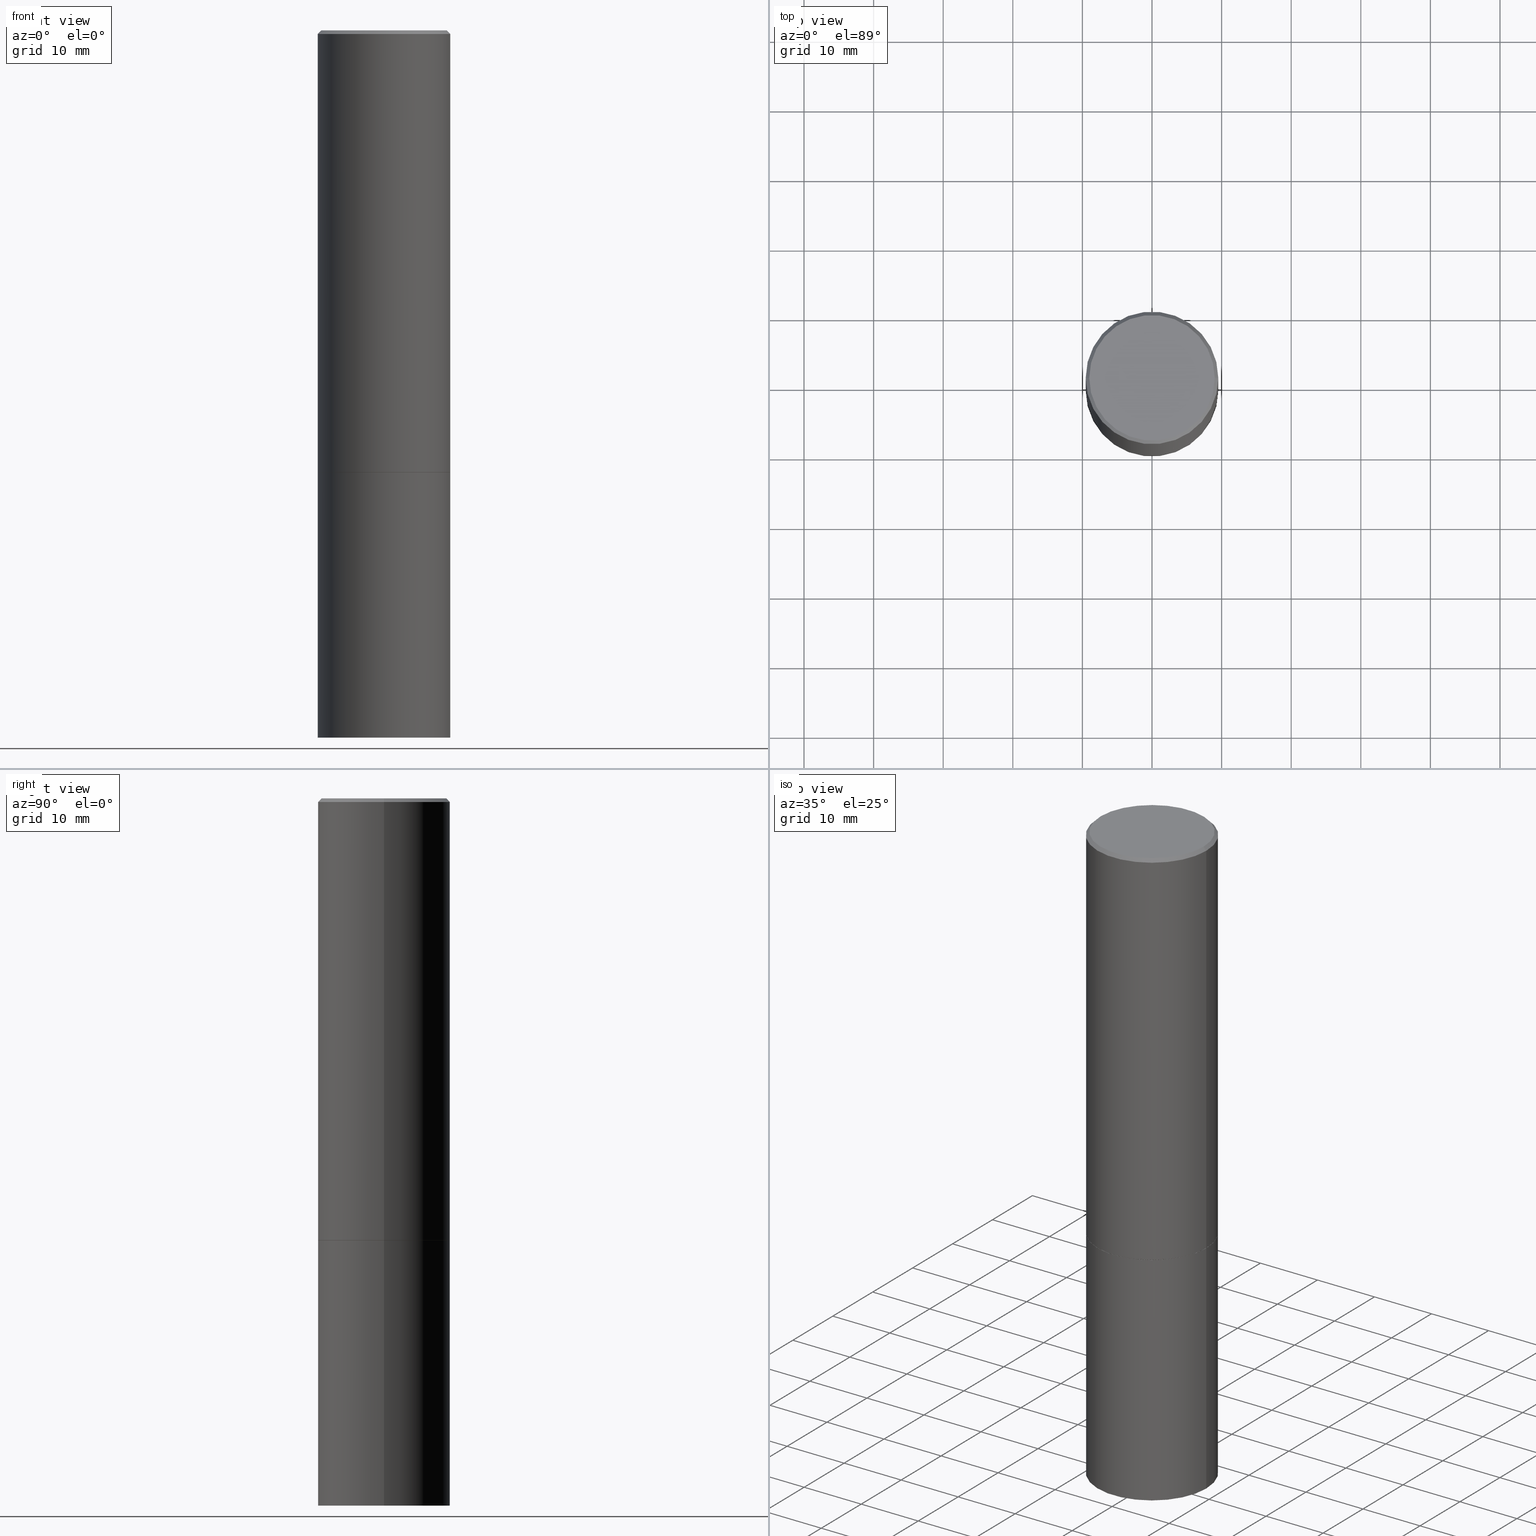
[diagram: canonical four-view strip — front | top / right | iso, engineering-drawing reading convention]
A machine part, canonical four-view strip (front | top / right | iso — engineering-drawing reading convention). The complete STEP part file that produces these views, byte-faithful:
ISO-10303-21;
HEADER;
FILE_DESCRIPTION (( 'STEP AP203' ),
    '1' );
FILE_NAME ('37206.STEP',
    '2024-02-27T20:58:34',
    ( '' ),
    ( '' ),
    'SwSTEP 2.0',
    'SolidWorks 2023',
    '' );
FILE_SCHEMA (( 'CONFIG_CONTROL_DESIGN' ));
ENDSEC;

DATA;
#1 =( GEOMETRIC_REPRESENTATION_CONTEXT ( 3 ) GLOBAL_UNCERTAINTY_ASSIGNED_CONTEXT ( ( #226 ) ) GLOBAL_UNIT_ASSIGNED_CONTEXT ( ( #276, #151, #274 ) ) REPRESENTATION_CONTEXT ( 'NONE', 'WORKASPACE' ) );
#2 = CARTESIAN_POINT ( 'NONE',  ( 9.781875224740546387E-29, -1.396592535537258233E-14, -4.000000000000000000 ) ) ;
#3 = CARTESIAN_POINT ( 'NONE',  ( 4.890937612370296805E-31, -6.982962677686323656E-17, -0.02000000000000009409 ) ) ;
#4 = COORDINATED_UNIVERSAL_TIME_OFFSET ( 5, 0, .BEHIND. ) ;
#5 = DIRECTION ( 'NONE',  ( -2.445468806185136877E-29, 3.491481338843145188E-15, 1.000000000000000000 ) ) ;
#6 = VECTOR ( 'NONE', #249, 39.37007874015748143 ) ;
#7 = DIRECTION ( 'NONE',  ( -2.445468806185136877E-29, 3.491481338843145188E-15, 1.000000000000000000 ) ) ;
#8 = PERSON_AND_ORGANIZATION ( #272, #94 ) ;
#9 = AXIS2_PLACEMENT_3D ( 'NONE', #3, #65, #225 ) ;
#10 = LOCAL_TIME ( 15, 58, 34.00000000000000000, #50 ) ;
#11 = APPROVAL_STATUS ( 'not_yet_approved' ) ;
#12 = ORIENTED_EDGE ( 'NONE', *, *, #91, .T. ) ;
#13 = CARTESIAN_POINT ( 'NONE',  ( -0.3739999999999999991, -6.071273515365089465E-15, -2.500000000000000000 ) ) ;
#14 = VERTEX_POINT ( 'NONE', #286 ) ;
#15 = CIRCLE ( 'NONE', #28, 0.3750000000000000555 ) ;
#16 = ORIENTED_EDGE ( 'NONE', *, *, #278, .F. ) ;
#17 = PRODUCT ( '37206', '37206', '', ( #31 ) ) ;
#18 = CARTESIAN_POINT ( 'NONE',  ( 0.3739999999999999991, -1.134033138856252894E-14, -2.500000000000000000 ) ) ;
#19 = ORIENTED_EDGE ( 'NONE', *, *, #231, .F. ) ;
#20 = PLANE ( 'NONE',  #352 ) ;
#21 = ORIENTED_EDGE ( 'NONE', *, *, #91, .F. ) ;
#22 = AXIS2_PLACEMENT_3D ( 'NONE', #219, #52, #157 ) ;
#23 = CARTESIAN_POINT ( 'NONE',  ( 2.478951750578621842E-15, 0.3549999999999996492, -1.237341619044265047E-15 ) ) ;
#24 = EDGE_LOOP ( 'NONE', ( #186, #241 ) ) ;
#25 = CARTESIAN_POINT ( 'NONE',  ( 0.000000000000000000, 0.000000000000000000, 0.000000000000000000 ) ) ;
#26 =( LENGTH_UNIT ( ) NAMED_UNIT ( * ) SI_UNIT ( $, .METRE. ) );
#27 = DIRECTION ( 'NONE',  ( -1.000000000000000000, 6.982962677686265922E-15, -4.876176775795935793E-29 ) ) ;
#28 = AXIS2_PLACEMENT_3D ( 'NONE', #305, #360, #330 ) ;
#29 = ADVANCED_FACE ( 'NONE', ( #140 ), #106, .T. ) ;
#30 = FACE_OUTER_BOUND ( 'NONE', #156, .T. ) ;
#31 = MECHANICAL_CONTEXT ( 'NONE', #353, 'mechanical' ) ;
#32 = CARTESIAN_POINT ( 'NONE',  ( -0.3749999999999998335, 2.664535259100374514E-15, -1.844600658845588757E-29 ) ) ;
#33 = CARTESIAN_POINT ( 'NONE',  ( 0.3750000000000000555, -2.618611004132350016E-15, 1.828566290923476203E-29 ) ) ;
#34 = AXIS2_PLACEMENT_3D ( 'NONE', #338, #109, #61 ) ;
#35 = APPROVAL_PERSON_ORGANIZATION ( #59, #254, #252 ) ;
#36 = CARTESIAN_POINT ( 'NONE',  ( 0.000000000000000000, 0.000000000000000000, 0.000000000000000000 ) ) ;
#37 = EDGE_CURVE ( 'NONE', #328, #244, #344, .T. ) ;
#38 = CC_DESIGN_PERSON_AND_ORGANIZATION_ASSIGNMENT ( #342, #198, ( #147 ) ) ;
#39 = ADVANCED_FACE ( 'NONE', ( #366 ), #133, .T. ) ;
#40 = AXIS2_PLACEMENT_3D ( 'NONE', #76, #240, #132 ) ;
#41 = EDGE_LOOP ( 'NONE', ( #95, #208 ) ) ;
#42 = PERSON_AND_ORGANIZATION_ROLE ( 'classification_officer' ) ;
#43 = ORIENTED_EDGE ( 'NONE', *, *, #48, .T. ) ;
#44 = DIRECTION ( 'NONE',  ( -0.7071067811865469066, 2.468850131082249961E-15, -0.7071067811865482389 ) ) ;
#45 = ORIENTED_EDGE ( 'NONE', *, *, #245, .F. ) ;
#46 = CIRCLE ( 'NONE', #235, 0.3549999999999996492 ) ;
#47 = DIRECTION ( 'NONE',  ( -2.445468806185136597E-29, 3.491481338843145583E-15, 1.000000000000000000 ) ) ;
#48 = EDGE_CURVE ( 'NONE', #210, #297, #161, .T. ) ;
#49 = VERTEX_POINT ( 'NONE', #190 ) ;
#50 = COORDINATED_UNIVERSAL_TIME_OFFSET ( 5, 0, .BEHIND. ) ;
#51 = ORIENTED_EDGE ( 'NONE', *, *, #229, .T. ) ;
#52 = DIRECTION ( 'NONE',  ( -2.445468806185136597E-29, 3.491481338843145583E-15, 1.000000000000000000 ) ) ;
#53 = CYLINDRICAL_SURFACE ( 'NONE', #89, 0.3750000000000000555 ) ;
#54 = ADVANCED_FACE ( 'NONE', ( #30 ), #53, .T. ) ;
#55 = DATE_AND_TIME ( #298, #10 ) ;
#56 = CARTESIAN_POINT ( 'NONE',  ( 0.3749999999999996669, -2.642516375941185662E-15, -0.02000000000000009409 ) ) ;
#57 = CC_DESIGN_DATE_AND_TIME_ASSIGNMENT ( #292, #143, ( #147 ) ) ;
#58 = FACE_OUTER_BOUND ( 'NONE', #24, .T. ) ;
#59 = PERSON_AND_ORGANIZATION ( #272, #94 ) ;
#60 = EDGE_CURVE ( 'NONE', #325, #239, #308, .T. ) ;
#61 = DIRECTION ( 'NONE',  ( 1.000000000000000000, -6.982962677686268288E-15, 0.000000000000000000 ) ) ;
#62 = VECTOR ( 'NONE', #5, 39.37007874015748143 ) ;
#63 = CONICAL_SURFACE ( 'NONE', #114, 0.3739999999999999991, 0.7853981633978239785 ) ;
#64 = SECURITY_CLASSIFICATION ( '', '', #321 ) ;
#65 = DIRECTION ( 'NONE',  ( -2.445468806185136597E-29, 3.491481338843145583E-15, 1.000000000000000000 ) ) ;
#66 = CARTESIAN_POINT ( 'NONE',  ( -0.3750000000000000555, 2.664535259100376091E-15, -1.844600658845589598E-29 ) ) ;
#67 = COORDINATED_UNIVERSAL_TIME_OFFSET ( 5, 0, .BEHIND. ) ;
#68 = MANIFOLD_SOLID_BREP ( 'Body-Move/Copy2[2]', #130 ) ;
#69 = VECTOR ( 'NONE', #44, 39.37007874015748143 ) ;
#70 = CC_DESIGN_APPROVAL ( #119, ( #64 ) ) ;
#71 = EDGE_LOOP ( 'NONE', ( #356, #220, #323, #153 ) ) ;
#72 = ORIENTED_EDGE ( 'NONE', *, *, #288, .F. ) ;
#73 = CARTESIAN_POINT ( 'NONE',  ( 2.618611004132448230E-15, 0.3749999999999861222, -4.000000000000000888 ) ) ;
#74 = DIRECTION ( 'NONE',  ( 2.438088387897960049E-29, -3.491481338843145188E-15, -1.000000000000000000 ) ) ;
#75 = EDGE_LOOP ( 'NONE', ( #146, #150, #126, #101 ) ) ;
#76 = CARTESIAN_POINT ( 'NONE',  ( 9.781875224740546387E-29, -1.396592535537258233E-14, -4.000000000000000000 ) ) ;
#77 = EDGE_LOOP ( 'NONE', ( #21, #193 ) ) ;
#78 = DIRECTION ( 'NONE',  ( 1.000000000000000000, -6.982962677686268288E-15, 0.000000000000000000 ) ) ;
#79 = DIRECTION ( 'NONE',  ( -2.445468806185136597E-29, 3.491481338843145583E-15, 1.000000000000000000 ) ) ;
#80 = AXIS2_PLACEMENT_3D ( 'NONE', #282, #111, #27 ) ;
#81 = CARTESIAN_POINT ( 'NONE',  ( -1.043851414335219820E-46, 1.490343170380447200E-32, 4.268512490100411279E-18 ) ) ;
#82 = APPLICATION_PROTOCOL_DEFINITION ( 'international standard', 'config_control_design', 1994, #301 ) ;
#83 = DIRECTION ( 'NONE',  ( -2.445468806185136597E-29, 3.491481338843145583E-15, 1.000000000000000000 ) ) ;
#84 = CARTESIAN_POINT ( 'NONE',  ( 6.113672015462842613E-29, -8.728703347107864943E-15, -2.500000000000000000 ) ) ;
#85 = CIRCLE ( 'NONE', #131, 0.3749999999999996669 ) ;
#86 = CARTESIAN_POINT ( 'NONE',  ( 0.3749999999999996669, -2.642516375941185662E-15, -0.02000000000000009409 ) ) ;
#87 = FACE_OUTER_BOUND ( 'NONE', #77, .T. ) ;
#88 = CC_DESIGN_PERSON_AND_ORGANIZATION_ASSIGNMENT ( #354, #93, ( #317 ) ) ;
#89 = AXIS2_PLACEMENT_3D ( 'NONE', #25, #341, #223 ) ;
#90 = CONICAL_SURFACE ( 'NONE', #183, 0.3749999999999996669, 0.7853981633974473908 ) ;
#91 = EDGE_CURVE ( 'NONE', #244, #328, #256, .T. ) ;
#92 = CALENDAR_DATE ( 2024, 27, 2 ) ;
#93 = PERSON_AND_ORGANIZATION_ROLE ( 'creator' ) ;
#94 = ORGANIZATION ( 'UNSPECIFIED', 'UNSPECIFIED', '' ) ;
#95 = ORIENTED_EDGE ( 'NONE', *, *, #152, .T. ) ;
#96 = APPROVAL_ROLE ( '' ) ;
#97 = ORIENTED_EDGE ( 'NONE', *, *, #238, .F. ) ;
#98 = ORIENTED_EDGE ( 'NONE', *, *, #329, .T. ) ;
#99 = CC_DESIGN_DATE_AND_TIME_ASSIGNMENT ( #180, #259, ( #64 ) ) ;
#100 = DIRECTION ( 'NONE',  ( 2.438088387897960049E-29, -3.491481338843145188E-15, -1.000000000000000000 ) ) ;
#101 = ORIENTED_EDGE ( 'NONE', *, *, #174, .F. ) ;
#102 = EDGE_CURVE ( 'NONE', #325, #267, #46, .T. ) ;
#103 = VERTEX_POINT ( 'NONE', #281 ) ;
#104 = PLANE ( 'NONE',  #243 ) ;
#105 = SHAPE_DEFINITION_REPRESENTATION ( #273, #320 ) ;
#106 = CYLINDRICAL_SURFACE ( 'NONE', #250, 0.3749999999999998335 ) ;
#107 = DIRECTION ( 'NONE',  ( 0.000000000000000000, 0.000000000000000000, 1.000000000000000000 ) ) ;
#108 = DIRECTION ( 'NONE',  ( 1.000000000000000000, -6.982962677686266711E-15, 0.000000000000000000 ) ) ;
#109 = DIRECTION ( 'NONE',  ( -2.445468806185136597E-29, 3.491481338843145583E-15, 1.000000000000000000 ) ) ;
#110 = CALENDAR_DATE ( 2024, 27, 2 ) ;
#111 = DIRECTION ( 'NONE',  ( 2.438088387897960049E-29, -3.491481338843145188E-15, -1.000000000000000000 ) ) ;
#112 = PERSON_AND_ORGANIZATION_ROLE ( 'design_owner' ) ;
#113 = ADVANCED_FACE ( 'NONE', ( #58 ), #164, .F. ) ;
#114 = AXIS2_PLACEMENT_3D ( 'NONE', #182, #299, #279 ) ;
#115 = ADVANCED_FACE ( 'NONE', ( #194 ), #90, .T. ) ;
#116 = DIRECTION ( 'NONE',  ( -2.445468806185136877E-29, 3.491481338843145188E-15, 1.000000000000000000 ) ) ;
#117 = CC_DESIGN_APPROVAL ( #138, ( #317 ) ) ;
#118 = APPROVAL_PERSON_ORGANIZATION ( #8, #119, #173 ) ;
#119 = APPROVAL ( #319, 'UNSPECIFIED' ) ;
#120 = COORDINATED_UNIVERSAL_TIME_OFFSET ( 5, 0, .BEHIND. ) ;
#121 = ORIENTED_EDGE ( 'NONE', *, *, #162, .T. ) ;
#122 = DIRECTION ( 'NONE',  ( 1.000000000000000000, -6.982962677686264344E-15, 0.000000000000000000 ) ) ;
#123 = CIRCLE ( 'NONE', #22, 0.3750000000000000555 ) ;
#124 = ORIENTED_EDGE ( 'NONE', *, *, #195, .F. ) ;
#125 = CARTESIAN_POINT ( 'NONE',  ( -0.3749999999999999445, -1.732985487172566723E-15, -2.499000000000000998 ) ) ;
#126 = ORIENTED_EDGE ( 'NONE', *, *, #245, .T. ) ;
#127 = DIRECTION ( 'NONE',  ( 1.000000000000000000, -6.982962677686265922E-15, 4.876176775795935793E-29 ) ) ;
#128 = CARTESIAN_POINT ( 'NONE',  ( 0.3549999999999996492, -2.538996582575038287E-15, 4.268512490117958041E-18 ) ) ;
#129 = ORIENTED_EDGE ( 'NONE', *, *, #102, .F. ) ;
#130 = CLOSED_SHELL ( 'NONE', ( #355, #29, #339, #115, #39, #351, #260, #262 ) ) ;
#131 = AXIS2_PLACEMENT_3D ( 'NONE', #311, #283, #253 ) ;
#132 = DIRECTION ( 'NONE',  ( 1.000000000000000000, -6.982962677686266711E-15, 0.000000000000000000 ) ) ;
#133 = CYLINDRICAL_SURFACE ( 'NONE', #159, 0.3749999999999998335 ) ;
#134 = ORIENTED_EDGE ( 'NONE', *, *, #329, .F. ) ;
#135 = EDGE_CURVE ( 'NONE', #49, #304, #221, .T. ) ;
#136 = DIRECTION ( 'NONE',  ( -1.000000000000000000, 6.982962677686266711E-15, 0.000000000000000000 ) ) ;
#137 = CIRCLE ( 'NONE', #357, 0.3549999999999996492 ) ;
#138 = APPROVAL ( #11, 'UNSPECIFIED' ) ;
#139 = DIRECTION ( 'NONE',  ( 2.445468806185136597E-29, -3.491481338843145583E-15, -1.000000000000000000 ) ) ;
#140 = FACE_OUTER_BOUND ( 'NONE', #236, .T. ) ;
#141 = CYLINDRICAL_SURFACE ( 'NONE', #192, 0.3750000000000000555 ) ;
#142 = AXIS2_PLACEMENT_3D ( 'NONE', #345, #188, #247 ) ;
#143 = DATE_TIME_ROLE ( 'creation_date' ) ;
#144 = ORIENTED_EDGE ( 'NONE', *, *, #60, .T. ) ;
#145 = COORDINATED_UNIVERSAL_TIME_OFFSET ( 5, 0, .BEHIND. ) ;
#146 = ORIENTED_EDGE ( 'NONE', *, *, #177, .F. ) ;
#147 = PRODUCT_DEFINITION ( 'UNKNOWN', '', #317, #312 ) ;
#148 = DIRECTION ( 'NONE',  ( -2.445468806185136597E-29, 3.491481338843145583E-15, 1.000000000000000000 ) ) ;
#149 = APPROVAL_PERSON_ORGANIZATION ( #266, #138, #96 ) ;
#150 = ORIENTED_EDGE ( 'NONE', *, *, #135, .T. ) ;
#151 =( NAMED_UNIT ( * ) PLANE_ANGLE_UNIT ( ) SI_UNIT ( $, .RADIAN. ) );
#152 = EDGE_CURVE ( 'NONE', #267, #325, #137, .T. ) ;
#153 = ORIENTED_EDGE ( 'NONE', *, *, #167, .F. ) ;
#154 = FACE_OUTER_BOUND ( 'NONE', #294, .T. ) ;
#155 = CC_DESIGN_PERSON_AND_ORGANIZATION_ASSIGNMENT ( #349, #206, ( #317 ) ) ;
#156 = EDGE_LOOP ( 'NONE', ( #280, #296, #19, #45 ) ) ;
#157 = DIRECTION ( 'NONE',  ( 1.000000000000000000, -6.982962677686264344E-15, 0.000000000000000000 ) ) ;
#158 = DIRECTION ( 'NONE',  ( -2.445468806185136597E-29, 3.491481338843145583E-15, 1.000000000000000000 ) ) ;
#159 = AXIS2_PLACEMENT_3D ( 'NONE', #168, #255, #224 ) ;
#160 = LINE ( 'NONE', #18, #346 ) ;
#161 = LINE ( 'NONE', #32, #62 ) ;
#162 = EDGE_CURVE ( 'NONE', #239, #297, #85, .T. ) ;
#163 = DIRECTION ( 'NONE',  ( -1.000000000000000000, 6.982962677686265922E-15, -4.876176775795935793E-29 ) ) ;
#164 = PLANE ( 'NONE',  #80 ) ;
#165 = CARTESIAN_POINT ( 'NONE',  ( 4.890937612370296805E-31, -6.982962677686323656E-17, -0.02000000000000009409 ) ) ;
#166 = VECTOR ( 'NONE', #7, 39.37007874015748143 ) ;
#167 = EDGE_CURVE ( 'NONE', #297, #239, #251, .T. ) ;
#168 = CARTESIAN_POINT ( 'NONE',  ( 0.000000000000000000, 0.000000000000000000, 0.000000000000000000 ) ) ;
#169 = LINE ( 'NONE', #33, #166 ) ;
#170 = CC_DESIGN_PERSON_AND_ORGANIZATION_ASSIGNMENT ( #316, #112, ( #17 ) ) ;
#171 = LINE ( 'NONE', #13, #290 ) ;
#172 = LOCAL_TIME ( 15, 58, 34.00000000000000000, #67 ) ;
#173 = APPROVAL_ROLE ( '' ) ;
#174 = EDGE_CURVE ( 'NONE', #14, #178, #207, .T. ) ;
#175 = DIRECTION ( 'NONE',  ( 1.000000000000000000, -6.982962677686265922E-15, 4.876176775795935793E-29 ) ) ;
#176 = AXIS2_PLACEMENT_3D ( 'NONE', #215, #364, #242 ) ;
#177 = EDGE_CURVE ( 'NONE', #49, #14, #365, .T. ) ;
#178 = VERTEX_POINT ( 'NONE', #230 ) ;
#179 = CC_DESIGN_PERSON_AND_ORGANIZATION_ASSIGNMENT ( #295, #42, ( #64 ) ) ;
#180 = DATE_AND_TIME ( #234, #264 ) ;
#181 = ORIENTED_EDGE ( 'NONE', *, *, #229, .F. ) ;
#182 = CARTESIAN_POINT ( 'NONE',  ( 6.113672015462842613E-29, -8.728703347107864943E-15, -2.500000000000000000 ) ) ;
#183 = AXIS2_PLACEMENT_3D ( 'NONE', #165, #139, #136 ) ;
#184 = ORIENTED_EDGE ( 'NONE', *, *, #37, .T. ) ;
#185 = DIRECTION ( 'NONE',  ( -2.438088387897960049E-29, 3.491481338843145188E-15, 1.000000000000000000 ) ) ;
#186 = ORIENTED_EDGE ( 'NONE', *, *, #231, .T. ) ;
#187 = CARTESIAN_POINT ( 'NONE',  ( 0.3750000000000000555, -1.658453635950493392E-14, -4.000000000000000000 ) ) ;
#188 = DIRECTION ( 'NONE',  ( -2.445468806185136597E-29, 3.491481338843145583E-15, 1.000000000000000000 ) ) ;
#189 = CARTESIAN_POINT ( 'NONE',  ( 6.113672015462842613E-29, -8.728703347107864943E-15, -2.500000000000000000 ) ) ;
#190 = CARTESIAN_POINT ( 'NONE',  ( -0.3750000000000000555, -8.682779092139847151E-15, -4.000000000000000000 ) ) ;
#191 = CLOSED_SHELL ( 'NONE', ( #54, #343, #113, #201 ) ) ;
#192 = AXIS2_PLACEMENT_3D ( 'NONE', #348, #204, #175 ) ;
#193 = ORIENTED_EDGE ( 'NONE', *, *, #37, .F. ) ;
#194 = FACE_OUTER_BOUND ( 'NONE', #302, .T. ) ;
#195 = EDGE_CURVE ( 'NONE', #267, #297, #228, .T. ) ;
#196 = DIRECTION ( 'NONE',  ( -2.445468806185136597E-29, 3.491481338843145583E-15, 1.000000000000000000 ) ) ;
#197 = VECTOR ( 'NONE', #237, 39.37007874015748143 ) ;
#198 = PERSON_AND_ORGANIZATION_ROLE ( 'creator' ) ;
#199 = CARTESIAN_POINT ( 'NONE',  ( 0.3739999999999999991, -1.134033138856252894E-14, -2.500000000000000000 ) ) ;
#200 = APPROVAL_DATE_TIME ( #287, #254 ) ;
#201 = ADVANCED_FACE ( 'NONE', ( #261 ), #141, .T. ) ;
#202 = AXIS2_PLACEMENT_3D ( 'NONE', #84, #306, #248 ) ;
#203 = AXIS2_PLACEMENT_3D ( 'NONE', #36, #107, #222 ) ;
#204 = DIRECTION ( 'NONE',  ( -2.445468806185136597E-29, 3.491481338843145583E-15, 1.000000000000000000 ) ) ;
#205 = DIMENSIONAL_EXPONENTS ( 1.000000000000000000, 0.000000000000000000, 0.000000000000000000, 0.000000000000000000, 0.000000000000000000, 0.000000000000000000, 0.000000000000000000 ) ;
#206 = PERSON_AND_ORGANIZATION_ROLE ( 'design_supplier' ) ;
#207 = CIRCLE ( 'NONE', #142, 0.3750000000000000555 ) ;
#208 = ORIENTED_EDGE ( 'NONE', *, *, #102, .T. ) ;
#209 = CALENDAR_DATE ( 2024, 27, 2 ) ;
#210 = VERTEX_POINT ( 'NONE', #125 ) ;
#211 = FACE_OUTER_BOUND ( 'NONE', #212, .T. ) ;
#212 = EDGE_LOOP ( 'NONE', ( #16, #268 ) ) ;
#213 = DIRECTION ( 'NONE',  ( 0.7071067811868130271, -2.468850131085038979E-15, 0.7071067811862817853 ) ) ;
#214 = AXIS2_PLACEMENT_3D ( 'NONE', #73, #74, #163 ) ;
#215 = CARTESIAN_POINT ( 'NONE',  ( 4.890937612370296805E-31, -6.982962677686323656E-17, -0.02000000000000009409 ) ) ;
#216 = ORIENTED_EDGE ( 'NONE', *, *, #167, .T. ) ;
#217 = FACE_OUTER_BOUND ( 'NONE', #41, .T. ) ;
#218 = DIRECTION ( 'NONE',  ( 1.000000000000000000, -6.982962677686265922E-15, 4.876176775795935793E-29 ) ) ;
#219 = CARTESIAN_POINT ( 'NONE',  ( 6.111226546656659252E-29, -8.725211865769023513E-15, -2.499000000000000998 ) ) ;
#220 = ORIENTED_EDGE ( 'NONE', *, *, #347, .T. ) ;
#221 = CIRCLE ( 'NONE', #263, 0.3750000000000000555 ) ;
#222 = DIRECTION ( 'NONE',  ( 1.000000000000000000, 0.000000000000000000, 0.000000000000000000 ) ) ;
#223 = DIRECTION ( 'NONE',  ( 1.000000000000000000, -6.982962677686265922E-15, 4.876176775795935793E-29 ) ) ;
#224 = DIRECTION ( 'NONE',  ( 1.000000000000000000, -6.982962677686265922E-15, 4.876176775795935793E-29 ) ) ;
#225 = DIRECTION ( 'NONE',  ( 1.000000000000000000, -6.982962677686266711E-15, 0.000000000000000000 ) ) ;
#226 = UNCERTAINTY_MEASURE_WITH_UNIT (LENGTH_MEASURE( 1.000000000000000082E-05 ), #276, 'distance_accuracy_value', 'NONE');
#227 = AXIS2_PLACEMENT_3D ( 'NONE', #363, #47, #78 ) ;
#228 = LINE ( 'NONE', #350, #69 ) ;
#229 = EDGE_CURVE ( 'NONE', #328, #210, #171, .T. ) ;
#230 = CARTESIAN_POINT ( 'NONE',  ( 0.3750000000000000555, -1.134731435124021338E-14, -2.500000000000000000 ) ) ;
#231 = EDGE_CURVE ( 'NONE', #178, #14, #314, .T. ) ;
#232 = APPROVAL_DATE_TIME ( #324, #138 ) ;
#233 = ORIENTED_EDGE ( 'NONE', *, *, #60, .F. ) ;
#234 = CALENDAR_DATE ( 2024, 27, 2 ) ;
#235 = AXIS2_PLACEMENT_3D ( 'NONE', #81, #196, #310 ) ;
#236 = EDGE_LOOP ( 'NONE', ( #98, #43, #331, #97 ) ) ;
#237 = DIRECTION ( 'NONE',  ( -2.445468806185136877E-29, 3.491481338843145188E-15, 1.000000000000000000 ) ) ;
#238 = EDGE_CURVE ( 'NONE', #103, #239, #269, .T. ) ;
#239 = VERTEX_POINT ( 'NONE', #86 ) ;
#240 = DIRECTION ( 'NONE',  ( -2.445468806185136597E-29, 3.491481338843145583E-15, 1.000000000000000000 ) ) ;
#241 = ORIENTED_EDGE ( 'NONE', *, *, #174, .T. ) ;
#242 = DIRECTION ( 'NONE',  ( -1.000000000000000000, 6.982962677686266711E-15, 0.000000000000000000 ) ) ;
#243 = AXIS2_PLACEMENT_3D ( 'NONE', #189, #185, #127 ) ;
#244 = VERTEX_POINT ( 'NONE', #199 ) ;
#245 = EDGE_CURVE ( 'NONE', #304, #178, #169, .T. ) ;
#246 = CARTESIAN_POINT ( 'NONE',  ( -0.3739999999999999991, -6.065975061016868641E-15, -2.500000000000000000 ) ) ;
#247 = DIRECTION ( 'NONE',  ( 1.000000000000000000, -6.982962677686264344E-15, 0.000000000000000000 ) ) ;
#248 = DIRECTION ( 'NONE',  ( 1.000000000000000000, -6.982962677686268288E-15, 0.000000000000000000 ) ) ;
#249 = DIRECTION ( 'NONE',  ( 0.7071067811865469066, -7.319954787623254468E-15, -0.7071067811865482389 ) ) ;
#250 = AXIS2_PLACEMENT_3D ( 'NONE', #335, #79, #218 ) ;
#251 = CIRCLE ( 'NONE', #9, 0.3749999999999996669 ) ;
#252 = APPROVAL_ROLE ( '' ) ;
#253 = DIRECTION ( 'NONE',  ( 1.000000000000000000, -6.982962677686266711E-15, 0.000000000000000000 ) ) ;
#254 = APPROVAL ( #315, 'UNSPECIFIED' ) ;
#255 = DIRECTION ( 'NONE',  ( -2.445468806185136597E-29, 3.491481338843145583E-15, 1.000000000000000000 ) ) ;
#256 = CIRCLE ( 'NONE', #34, 0.3739999999999999991 ) ;
#257 = VECTOR ( 'NONE', #116, 39.37007874015748143 ) ;
#258 = CARTESIAN_POINT ( 'NONE',  ( 0.3749999999999998335, -2.618611004132348439E-15, 1.828566290923475082E-29 ) ) ;
#259 = DATE_TIME_ROLE ( 'classification_date' ) ;
#260 = ADVANCED_FACE ( 'NONE', ( #87 ), #104, .F. ) ;
#261 = FACE_OUTER_BOUND ( 'NONE', #75, .T. ) ;
#262 = ADVANCED_FACE ( 'NONE', ( #217 ), #20, .F. ) ;
#263 = AXIS2_PLACEMENT_3D ( 'NONE', #2, #158, #108 ) ;
#264 = LOCAL_TIME ( 15, 58, 34.00000000000000000, #145 ) ;
#265 = PRODUCT_RELATED_PRODUCT_CATEGORY ( 'detail', '', ( #17 ) ) ;
#266 = PERSON_AND_ORGANIZATION ( #272, #94 ) ;
#267 = VERTEX_POINT ( 'NONE', #332 ) ;
#268 = ORIENTED_EDGE ( 'NONE', *, *, #135, .F. ) ;
#269 = LINE ( 'NONE', #258, #197 ) ;
#270 = CC_DESIGN_APPROVAL ( #254, ( #147 ) ) ;
#271 = EDGE_LOOP ( 'NONE', ( #12, #51, #134, #72 ) ) ;
#272 = PERSON ( 'UNSPECIFIED', 'UNSPECIFIED', 'UNSPECIFIED', ('UNSPECIFIED'), ('UNSPECIFIED'), ('UNSPECIFIED') ) ;
#273 = PRODUCT_DEFINITION_SHAPE ( 'NONE', 'NONE',  #147 ) ;
#274 =( NAMED_UNIT ( * ) SI_UNIT ( $, .STERADIAN. ) SOLID_ANGLE_UNIT ( ) );
#275 = ORIENTED_EDGE ( 'NONE', *, *, #195, .T. ) ;
#276 =( CONVERSION_BASED_UNIT ( 'INCH', #327 ) LENGTH_UNIT ( ) NAMED_UNIT ( #205 ) );
#277 = ORIENTED_EDGE ( 'NONE', *, *, #152, .F. ) ;
#278 = EDGE_CURVE ( 'NONE', #304, #49, #322, .T. ) ;
#279 = DIRECTION ( 'NONE',  ( 1.000000000000000000, -6.982962677686268288E-15, 0.000000000000000000 ) ) ;
#280 = ORIENTED_EDGE ( 'NONE', *, *, #278, .T. ) ;
#281 = CARTESIAN_POINT ( 'NONE',  ( 0.3750000000000000555, -1.134382286990137353E-14, -2.499000000000000998 ) ) ;
#282 = CARTESIAN_POINT ( 'NONE',  ( 2.618611004132411153E-15, 0.3749999999999912847, -2.500000000000001332 ) ) ;
#283 = DIRECTION ( 'NONE',  ( -2.445468806185136597E-29, 3.491481338843145583E-15, 1.000000000000000000 ) ) ;
#284 = LOCAL_TIME ( 15, 58, 34.00000000000000000, #120 ) ;
#285 = CC_DESIGN_SECURITY_CLASSIFICATION ( #64, ( #317 ) ) ;
#286 = CARTESIAN_POINT ( 'NONE',  ( -0.3750000000000000555, -8.682779092139847151E-15, -2.500000000000000000 ) ) ;
#287 = DATE_AND_TIME ( #110, #337 ) ;
#288 = EDGE_CURVE ( 'NONE', #244, #103, #160, .T. ) ;
#289 = CARTESIAN_POINT ( 'NONE',  ( 6.113672015462842613E-29, -8.728703347107864943E-15, -2.500000000000000000 ) ) ;
#290 = VECTOR ( 'NONE', #291, 39.37007874015748854 ) ;
#291 = DIRECTION ( 'NONE',  ( -0.7071067811868130271, 7.493145998871311837E-15, 0.7071067811862817853 ) ) ;
#292 = DATE_AND_TIME ( #92, #172 ) ;
#293 = CONICAL_SURFACE ( 'NONE', #176, 0.3749999999999996669, 0.7853981633974473908 ) ;
#294 = EDGE_LOOP ( 'NONE', ( #129, #144, #121, #124 ) ) ;
#295 = PERSON_AND_ORGANIZATION ( #272, #94 ) ;
#296 = ORIENTED_EDGE ( 'NONE', *, *, #177, .T. ) ;
#297 = VERTEX_POINT ( 'NONE', #309 ) ;
#298 = CALENDAR_DATE ( 2024, 27, 2 ) ;
#299 = DIRECTION ( 'NONE',  ( -2.445468806185136597E-29, 3.491481338843145583E-15, 1.000000000000000000 ) ) ;
#300 = AXIS2_PLACEMENT_3D ( 'NONE', #289, #148, #122 ) ;
#301 = APPLICATION_CONTEXT ( 'configuration controlled 3d designs of mechanical parts and assemblies' ) ;
#302 = EDGE_LOOP ( 'NONE', ( #233, #277, #275, #216 ) ) ;
#303 = FACE_OUTER_BOUND ( 'NONE', #271, .T. ) ;
#304 = VERTEX_POINT ( 'NONE', #187 ) ;
#305 = CARTESIAN_POINT ( 'NONE',  ( 6.111226546656659252E-29, -8.725211865769023513E-15, -2.499000000000000998 ) ) ;
#306 = DIRECTION ( 'NONE',  ( -2.445468806185136597E-29, 3.491481338843145583E-15, 1.000000000000000000 ) ) ;
#307 = DIRECTION ( 'NONE',  ( -1.000000000000000000, 6.982962677686265922E-15, -4.876176775795935793E-29 ) ) ;
#308 = LINE ( 'NONE', #56, #6 ) ;
#309 = CARTESIAN_POINT ( 'NONE',  ( -0.3749999999999996669, 2.548781377355484352E-15, -0.02000000000000009409 ) ) ;
#310 = DIRECTION ( 'NONE',  ( 1.000000000000000000, -6.982962677686265922E-15, 4.876231632511992667E-29 ) ) ;
#311 = CARTESIAN_POINT ( 'NONE',  ( 4.890937612370296805E-31, -6.982962677686323656E-17, -0.02000000000000009409 ) ) ;
#312 = DESIGN_CONTEXT ( 'detailed design', #301, 'design' ) ;
#313 = DIRECTION ( 'NONE',  ( 1.000000000000000000, -6.982962677686265922E-15, 4.876231632511992667E-29 ) ) ;
#314 = CIRCLE ( 'NONE', #300, 0.3750000000000000555 ) ;
#315 = APPROVAL_STATUS ( 'not_yet_approved' ) ;
#316 = PERSON_AND_ORGANIZATION ( #272, #94 ) ;
#317 = PRODUCT_DEFINITION_FORMATION_WITH_SPECIFIED_SOURCE ( 'ANY', '', #17, .NOT_KNOWN. ) ;
#318 = MANIFOLD_SOLID_BREP ( 'Body-Move/Copy2[1]', #191 ) ;
#319 = APPROVAL_STATUS ( 'not_yet_approved' ) ;
#320 = ADVANCED_BREP_SHAPE_REPRESENTATION ( '37206', ( #318, #68, #203 ), #1 ) ;
#321 = SECURITY_CLASSIFICATION_LEVEL ( 'unclassified' ) ;
#322 = CIRCLE ( 'NONE', #40, 0.3750000000000000555 ) ;
#323 = ORIENTED_EDGE ( 'NONE', *, *, #238, .T. ) ;
#324 = DATE_AND_TIME ( #209, #284 ) ;
#325 = VERTEX_POINT ( 'NONE', #128 ) ;
#326 = APPROVAL_DATE_TIME ( #55, #119 ) ;
#327 = LENGTH_MEASURE_WITH_UNIT ( LENGTH_MEASURE( 0.02539999999999999897 ), #26 );
#328 = VERTEX_POINT ( 'NONE', #246 ) ;
#329 = EDGE_CURVE ( 'NONE', #103, #210, #15, .T. ) ;
#330 = DIRECTION ( 'NONE',  ( 1.000000000000000000, -6.982962677686264344E-15, 0.000000000000000000 ) ) ;
#331 = ORIENTED_EDGE ( 'NONE', *, *, #162, .F. ) ;
#332 = CARTESIAN_POINT ( 'NONE',  ( -0.3549999999999996492, 2.513866563967053097E-15, 4.268512490082953109E-18 ) ) ;
#333 = ORIENTED_EDGE ( 'NONE', *, *, #288, .T. ) ;
#334 = FACE_OUTER_BOUND ( 'NONE', #361, .T. ) ;
#335 = CARTESIAN_POINT ( 'NONE',  ( 0.000000000000000000, 0.000000000000000000, 0.000000000000000000 ) ) ;
#336 = PLANE ( 'NONE',  #214 ) ;
#337 = LOCAL_TIME ( 15, 58, 34.00000000000000000, #4 ) ;
#338 = CARTESIAN_POINT ( 'NONE',  ( 6.113672015462842613E-29, -8.728703347107864943E-15, -2.500000000000000000 ) ) ;
#339 = ADVANCED_FACE ( 'NONE', ( #154 ), #293, .T. ) ;
#340 = CARTESIAN_POINT ( 'NONE',  ( -1.043851414335219820E-46, 1.490343170380447200E-32, 4.268512490100411279E-18 ) ) ;
#341 = DIRECTION ( 'NONE',  ( -2.445468806185136597E-29, 3.491481338843145583E-15, 1.000000000000000000 ) ) ;
#342 = PERSON_AND_ORGANIZATION ( #272, #94 ) ;
#343 = ADVANCED_FACE ( 'NONE', ( #211 ), #336, .T. ) ;
#344 = CIRCLE ( 'NONE', #202, 0.3739999999999999991 ) ;
#345 = CARTESIAN_POINT ( 'NONE',  ( 6.113672015462842613E-29, -8.728703347107864943E-15, -2.500000000000000000 ) ) ;
#346 = VECTOR ( 'NONE', #213, 39.37007874015748854 ) ;
#347 = EDGE_CURVE ( 'NONE', #210, #103, #123, .T. ) ;
#348 = CARTESIAN_POINT ( 'NONE',  ( 0.000000000000000000, 0.000000000000000000, 0.000000000000000000 ) ) ;
#349 = PERSON_AND_ORGANIZATION ( #272, #94 ) ;
#350 = CARTESIAN_POINT ( 'NONE',  ( -0.3749999999999996669, 2.548781377355484352E-15, -0.02000000000000009409 ) ) ;
#351 = ADVANCED_FACE ( 'NONE', ( #334 ), #63, .T. ) ;
#352 = AXIS2_PLACEMENT_3D ( 'NONE', #23, #100, #307 ) ;
#353 = APPLICATION_CONTEXT ( 'configuration controlled 3d designs of mechanical parts and assemblies' ) ;
#354 = PERSON_AND_ORGANIZATION ( #272, #94 ) ;
#355 = ADVANCED_FACE ( 'NONE', ( #303 ), #362, .T. ) ;
#356 = ORIENTED_EDGE ( 'NONE', *, *, #48, .F. ) ;
#357 = AXIS2_PLACEMENT_3D ( 'NONE', #340, #83, #313 ) ;
#358 = ORIENTED_EDGE ( 'NONE', *, *, #347, .F. ) ;
#359 = APPLICATION_PROTOCOL_DEFINITION ( 'international standard', 'config_control_design', 1994, #353 ) ;
#360 = DIRECTION ( 'NONE',  ( -2.445468806185136597E-29, 3.491481338843145583E-15, 1.000000000000000000 ) ) ;
#361 = EDGE_LOOP ( 'NONE', ( #181, #184, #333, #358 ) ) ;
#362 = CONICAL_SURFACE ( 'NONE', #227, 0.3739999999999999991, 0.7853981633978239785 ) ;
#363 = CARTESIAN_POINT ( 'NONE',  ( 6.113672015462842613E-29, -8.728703347107864943E-15, -2.500000000000000000 ) ) ;
#364 = DIRECTION ( 'NONE',  ( 2.445468806185136597E-29, -3.491481338843145583E-15, -1.000000000000000000 ) ) ;
#365 = LINE ( 'NONE', #66, #257 ) ;
#366 = FACE_OUTER_BOUND ( 'NONE', #71, .T. ) ;
ENDSEC;
END-ISO-10303-21;
